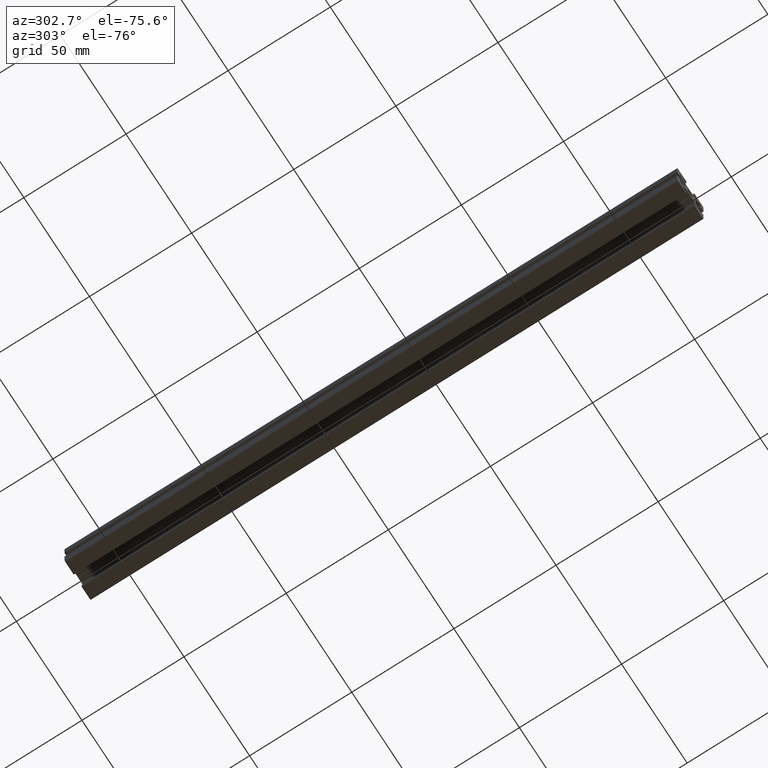
[diagram: clean part render]
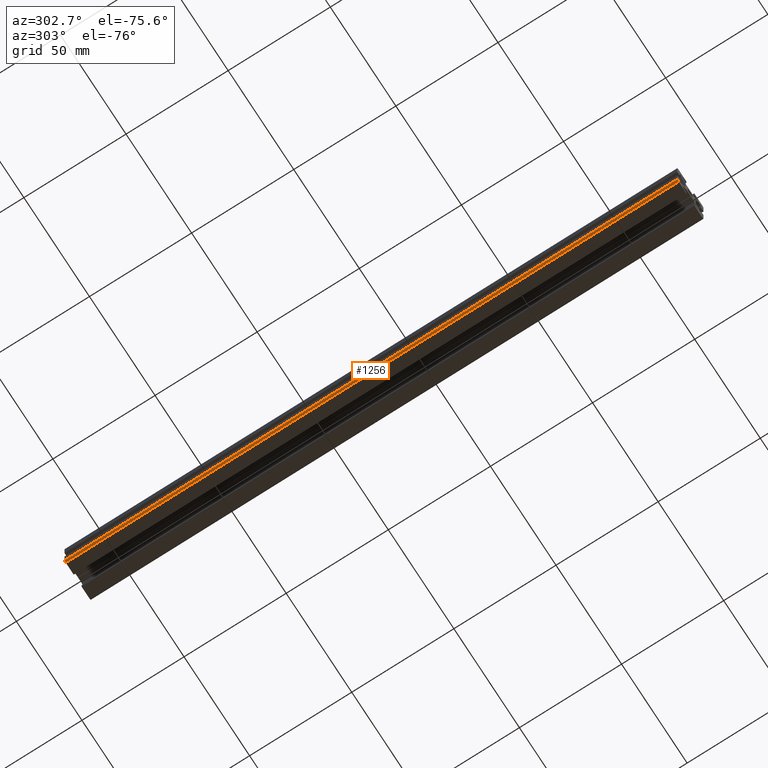
[diagram: same view with one face highlighted and labeled with its STEP entity id]
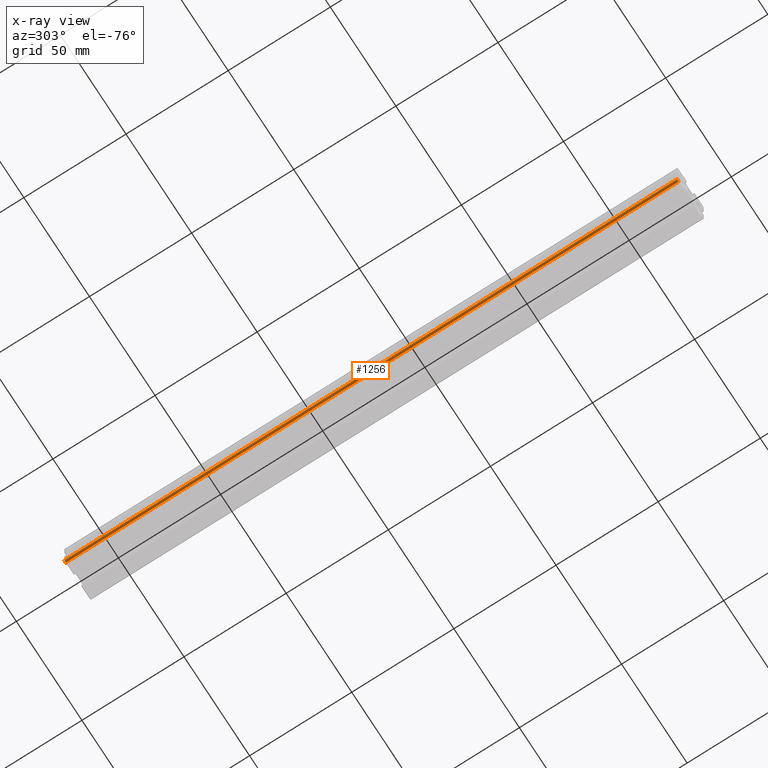
[diagram: x-ray of the same camera — body ghosted, the highlighted face saturated]
A machine part, auxiliary view. The second image highlights one B-rep face of the part: STEP entity #1256.
The next image is the same camera in x-ray: the body ghosted, the highlighted face saturated — about 0% of this face is hidden behind the body in this view.
In plain terms, the highlighted cylindrical surface (edge-blend (fillet) strip) has radius 1 mm, axis along (0, 1, -0).
Its self-contained STEP definition (entity closure, byte-faithful):
#20=CYLINDRICAL_SURFACE('',#1340,1.);
#43=FACE_OUTER_BOUND('',#107,.T.);
#107=EDGE_LOOP('',(#940,#941,#942,#943));
#154=CIRCLE('',#1318,1.);
#160=CIRCLE('',#1341,1.);
#250=LINE('',#1905,#423);
#252=LINE('',#1909,#425);
#423=VECTOR('',#1527,1000.);
#425=VECTOR('',#1531,1000.);
#523=VERTEX_POINT('',#1744);
#524=VERTEX_POINT('',#1746);
#587=VERTEX_POINT('',#1904);
#588=VERTEX_POINT('',#1908);
#645=EDGE_CURVE('',#523,#524,#154,.T.);
#724=EDGE_CURVE('',#524,#587,#250,.T.);
#726=EDGE_CURVE('',#523,#588,#252,.T.);
#727=EDGE_CURVE('',#587,#588,#160,.T.);
#940=ORIENTED_EDGE('',*,*,#726,.T.);
#941=ORIENTED_EDGE('',*,*,#727,.F.);
#942=ORIENTED_EDGE('',*,*,#724,.F.);
#943=ORIENTED_EDGE('',*,*,#645,.F.);
#1256=ADVANCED_FACE('',(#43),#20,.T.);
#1318=AXIS2_PLACEMENT_3D('',#1747,#1410,#1411);
#1340=AXIS2_PLACEMENT_3D('',#1907,#1529,#1530);
#1341=AXIS2_PLACEMENT_3D('',#1910,#1532,#1533);
#1410=DIRECTION('center_axis',(0.,0.,-1.));
#1411=DIRECTION('ref_axis',(1.,0.,0.));
#1527=DIRECTION('',(0.,0.,1.));
#1529=DIRECTION('center_axis',(0.,0.,1.));
#1530=DIRECTION('ref_axis',(1.,0.,0.));
#1531=DIRECTION('',(0.,0.,1.));
#1532=DIRECTION('center_axis',(0.,0.,1.));
#1533=DIRECTION('ref_axis',(1.,0.,0.));
#1744=CARTESIAN_POINT('',(-10.,-1991.,-2280.00000000014));
#1746=CARTESIAN_POINT('',(-9.,-1990.,-2280.00000000014));
#1747=CARTESIAN_POINT('Origin',(-9.,-1991.,-2280.00000000014));
#1904=CARTESIAN_POINT('',(-9.,-1990.,-1980.00000000014));
#1905=CARTESIAN_POINT('',(-9.,-1990.,-5980.00000000014));
#1907=CARTESIAN_POINT('Origin',(-9.,-1991.,-5980.00000000014));
#1908=CARTESIAN_POINT('',(-10.,-1991.,-1980.00000000014));
#1909=CARTESIAN_POINT('',(-10.,-1991.,-5980.00000000014));
#1910=CARTESIAN_POINT('Origin',(-9.,-1991.,-1980.00000000014));